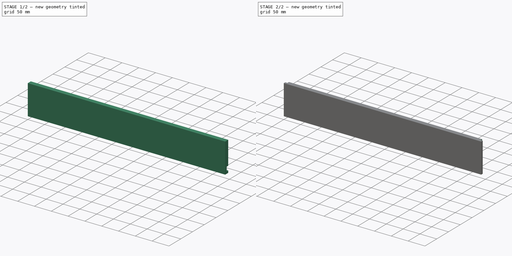
[diagram: build sequence overview — one tinted view per stage of 2, left to right]
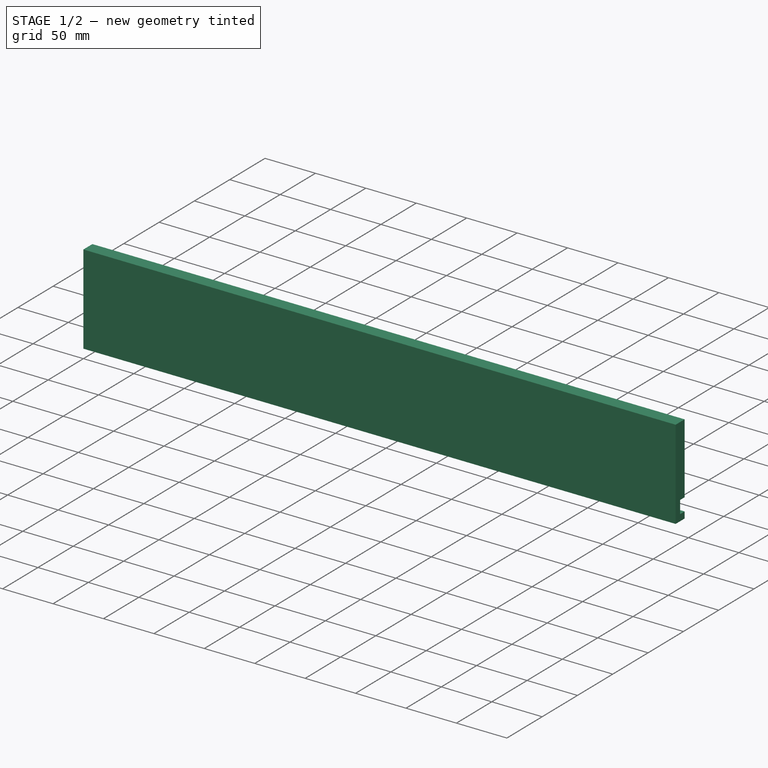
[diagram: stage 1 of 2 — iso view after this stage's code; geometry added in this stage tinted green]
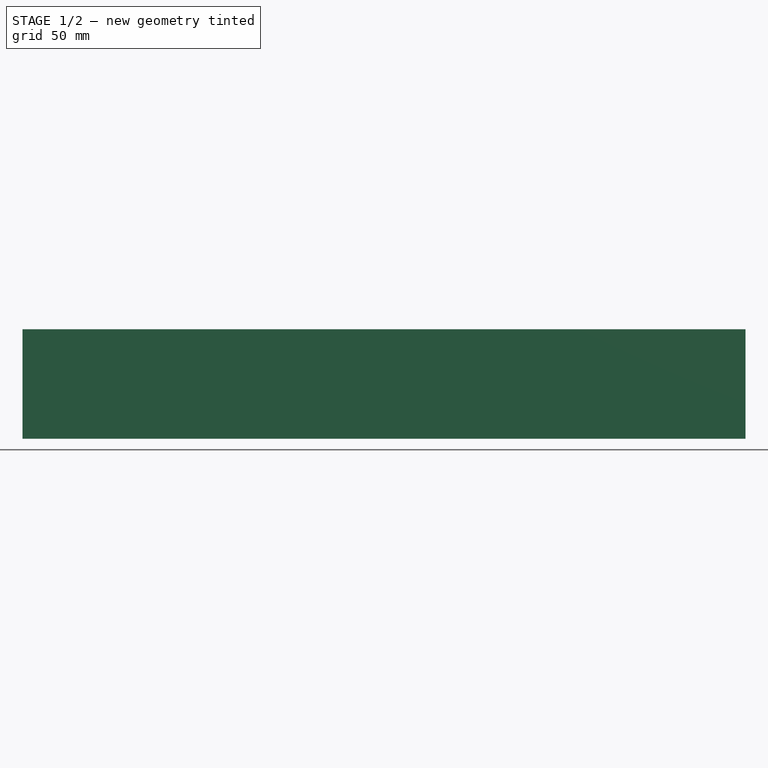
[diagram: stage 1 of 2 — front view after this stage's code; geometry added in this stage tinted green]
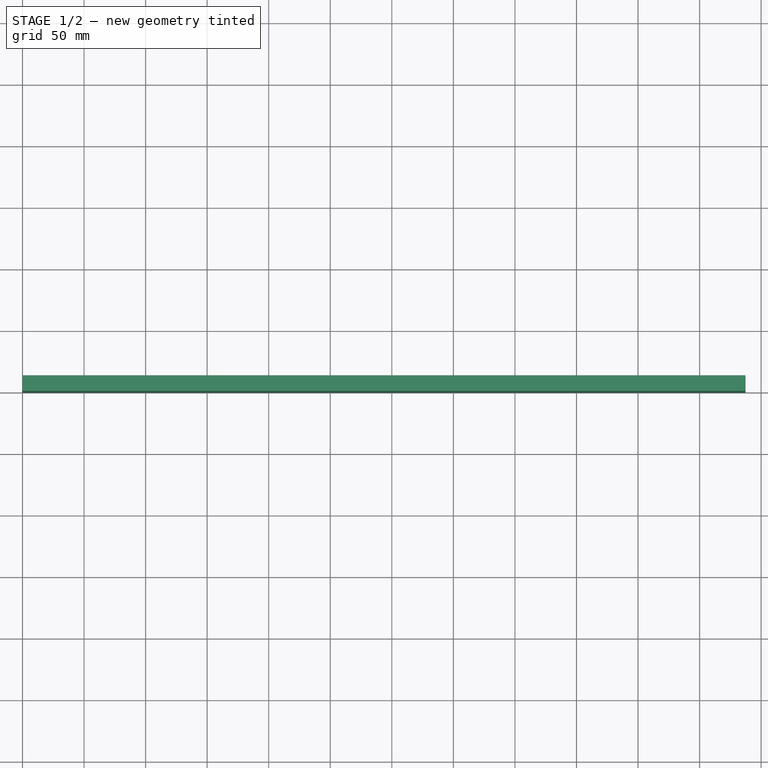
[diagram: stage 1 of 2 — top view after this stage's code; geometry added in this stage tinted green]
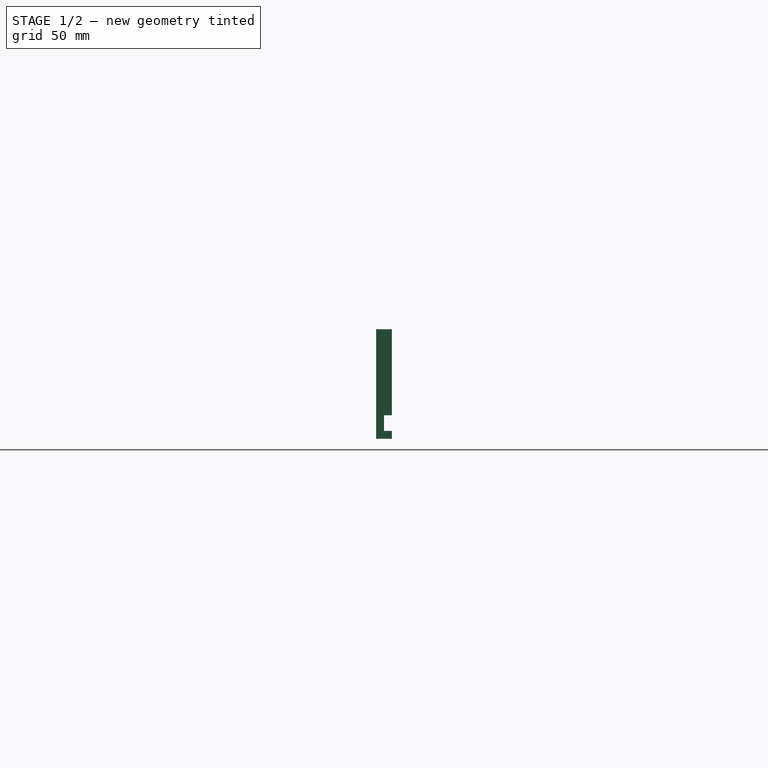
[diagram: stage 1 of 2 — right view after this stage's code; geometry added in this stage tinted green]
FCSTD DOCUMENT  (FreeCAD 0.19R24291 (Git))
Label: side
License: All rights reserved
LicenseURL: http://en.wikipedia.org/wiki/All_rights_reserved
objects: Sketcher::SketchObject×3, PartDesign::Pocket×2, PartDesign::Pad×1, PartDesign::Body×1
note: 10 computed .brp shape members not serialized (recipe doc carries the construction recipe); baked Part::Feature solids carry a one-line shape summary decoded from their .brp

FEATURE [Sketcher::SketchObject] Sketch
  FullyConstrained = true
  MapMode = 5
  Placement = pos=(0,0,0) rot=(0.57735,0.57735,0.57735;2.0944rad)
  Support = -> [YZ_Plane]
  expr: Constraints[8] = 3.5 * 25.4
  expr: Constraints[10] = 0.5 * 25.4
  sketch-geometry (4):
    g0: LineSegment StartX=0 StartY=0 StartZ=0 EndX=12.7 EndY=0 EndZ=0
    g1: LineSegment StartX=12.7 StartY=0 StartZ=0 EndX=12.7 EndY=88.9 EndZ=0
    g2: LineSegment StartX=12.7 StartY=88.9 StartZ=0 EndX=0 EndY=88.9 EndZ=0
    g3: LineSegment StartX=0 StartY=88.9 StartZ=0 EndX=0 EndY=0 EndZ=0
  constraints (11):
    c: Coincident(g0,g1)
    c: Coincident(g1,g2)
    c: Coincident(g2,g3)
    c: Coincident(g3,g0)
    c: Horizontal(g0)
    c: Horizontal(g2)
    c: Vertical(g1)
    c: Vertical(g3)
    c: DistanceY(g3,g3) = 88.9
    c: Coincident(g0,g-1)
    c: DistanceX(g0,g0) = 12.7
FEATURE [PartDesign::Pad] Pad
  Direction = (1,1,1)
  Length = 587.3
  Length2 = 100
  Placement = pos=(0,0,0) rot=(0.57735,0.57735,0.57735;2.0944rad)
  Profile = -> Sketch
  Type = 0
  expr: Length = 600 - 1 / 4 * 25.4 - 1 / 4 * 25.4
FEATURE [Sketcher::SketchObject] Sketch001
  ExternalGeometry = -> [Pad]
  FullyConstrained = true
  MapMode = 5
  Placement = pos=(587.3,-2.608e-13,1.956e-13) rot=(0.57735,0.57735,0.57735;2.0944rad)
  Support = -> [Pad]
  expr: Constraints[9] = 6.35
  expr: Constraints[10] = 0.5 * 25.4
  expr: Constraints[11] = 1 / 4 * 25.4
  sketch-geometry (4):
    g0: LineSegment StartX=12.7 StartY=19.05 StartZ=0 EndX=6.35 EndY=19.05 EndZ=0
    g1: LineSegment StartX=6.35 StartY=19.05 StartZ=0 EndX=6.35 EndY=6.35 EndZ=0
    g2: LineSegment StartX=6.35 StartY=6.35 StartZ=0 EndX=12.7 EndY=6.35 EndZ=0
    g3: LineSegment StartX=12.7 StartY=6.35 StartZ=0 EndX=12.7 EndY=19.05 EndZ=0
  constraints (12):
    c: Coincident(g0,g1)
    c: Coincident(g1,g2)
    c: Coincident(g2,g3)
    c: Coincident(g3,g0)
    c: Horizontal(g0)
    c: Horizontal(g2)
    c: Vertical(g1)
    c: Vertical(g3)
    c: PointOnObject(g0,g-4)
    c: DistanceY(g-4,g2) = 6.35
    c: DistanceY(g2,g0) = 12.7
    c: DistanceX(g1,g2) = 6.35
FEATURE [PartDesign::Pocket] Pocket
  BaseFeature = -> Pad
  Length = 5
  Length2 = 100
  Placement = pos=(0,0,0) rot=(0.57735,0.57735,0.57735;2.0944rad)
  Profile = -> Sketch001
  Type = 1
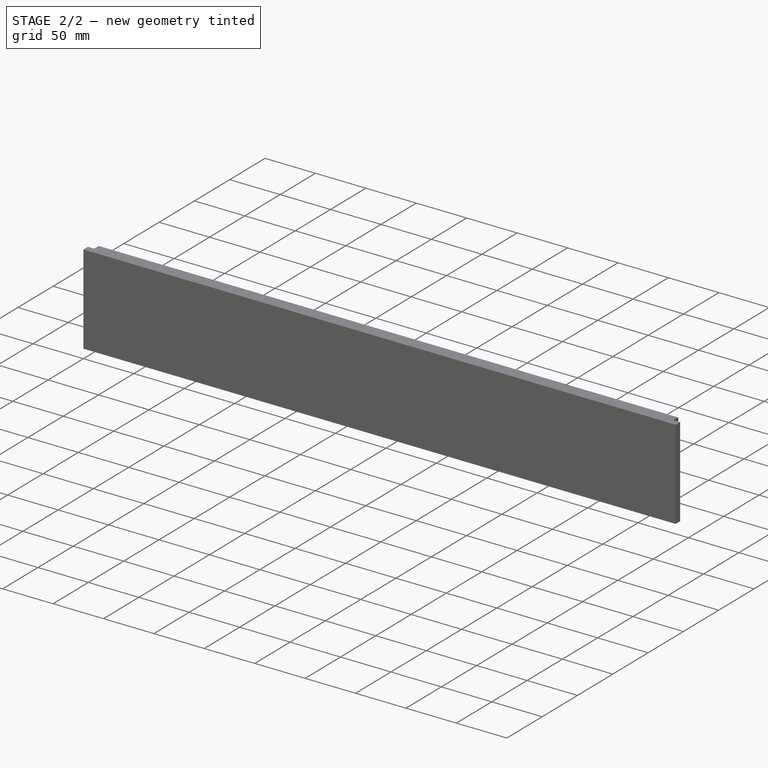
[diagram: stage 2 of 2 — iso view after this stage's code; geometry added in this stage tinted green]
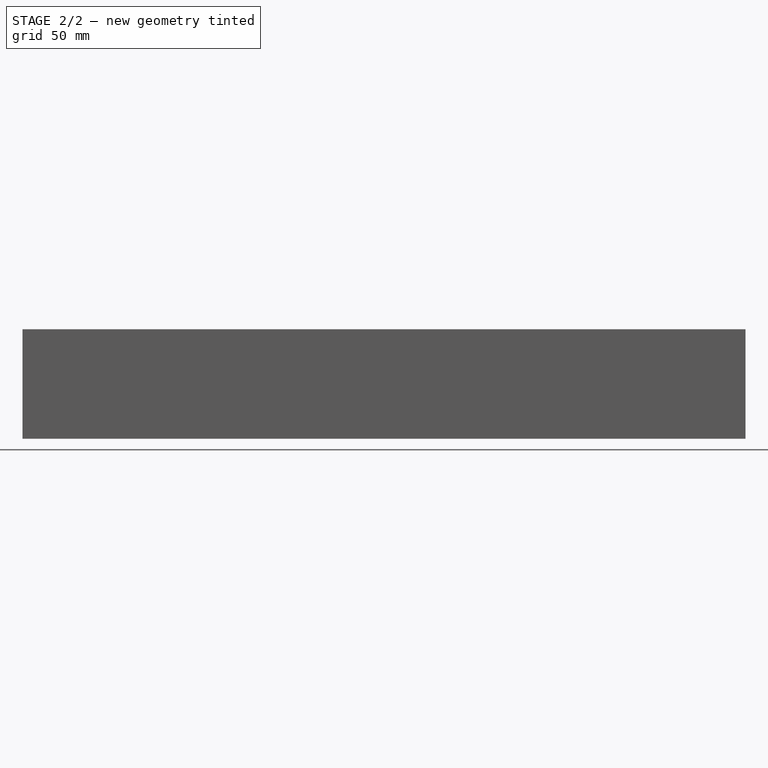
[diagram: stage 2 of 2 — front view after this stage's code; geometry added in this stage tinted green]
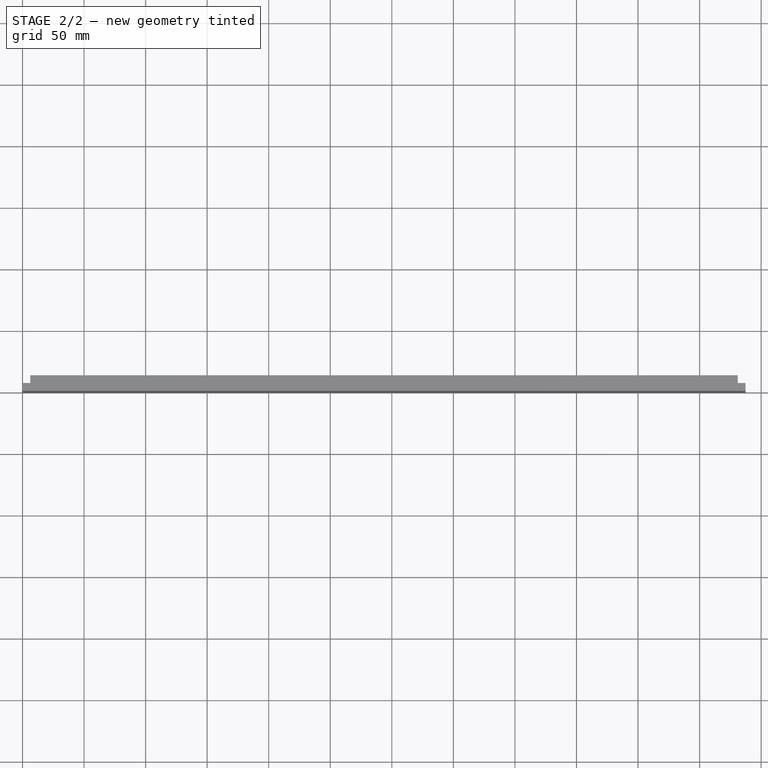
[diagram: stage 2 of 2 — top view after this stage's code; geometry added in this stage tinted green]
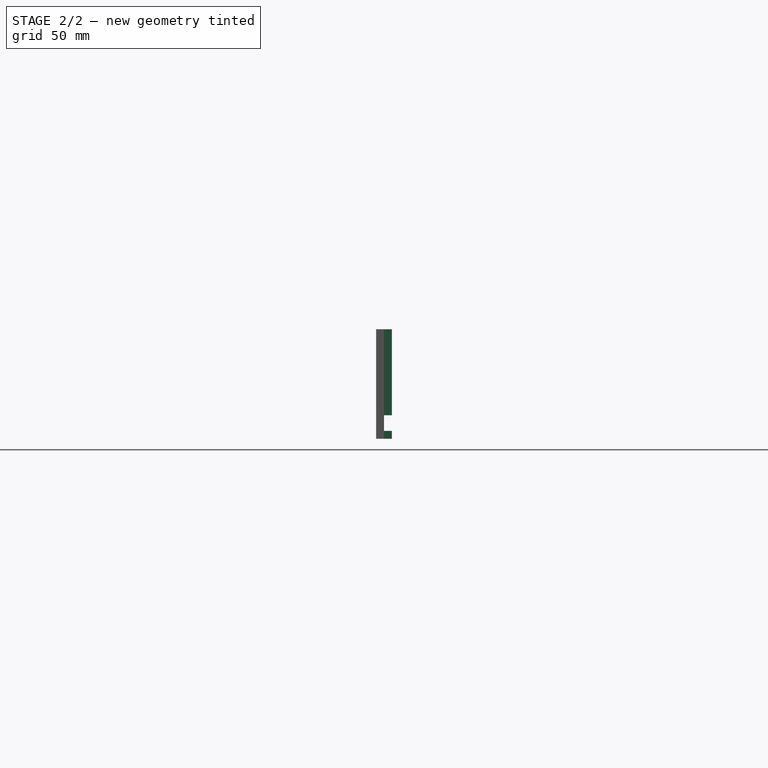
[diagram: stage 2 of 2 — right view after this stage's code; geometry added in this stage tinted green]
FEATURE [Sketcher::SketchObject] Sketch002
  ExternalGeometry = -> [Pocket]
  FullyConstrained = true
  MapMode = 5
  Placement = pos=(-6.42e-14,5.92e-14,88.9) rot=(0,0,-1;1.5708rad)
  Support = -> [Pocket]
  expr: Constraints[9] = 6.35
  expr: Constraints[10] = 6.35
  sketch-geometry (8):
    g0: LineSegment StartX=-12.7 StartY=587.3 StartZ=0 EndX=-6.35 EndY=587.3 EndZ=0
    g1: LineSegment StartX=-6.35 StartY=587.3 StartZ=0 EndX=-6.35 EndY=580.95 EndZ=0
    g2: LineSegment StartX=-6.35 StartY=580.95 StartZ=0 EndX=-12.7 EndY=580.95 EndZ=0
    g3: LineSegment StartX=-12.7 StartY=580.95 StartZ=0 EndX=-12.7 EndY=587.3 EndZ=0
    g4: LineSegment StartX=-12.7 StartY=-1.51e-14 StartZ=0 EndX=-6.35 EndY=-1.51e-14 EndZ=0
    g5: LineSegment StartX=-6.35 StartY=-1.51e-14 StartZ=0 EndX=-6.35 EndY=6.35 EndZ=0
    g6: LineSegment StartX=-6.35 StartY=6.35 StartZ=0 EndX=-12.7 EndY=6.35 EndZ=0
    g7: LineSegment StartX=-12.7 StartY=6.35 StartZ=0 EndX=-12.7 EndY=-1.51e-14 EndZ=0
  constraints (22):
    c: Coincident(g0,g1)
    c: Coincident(g1,g2)
    c: Coincident(g2,g3)
    c: Coincident(g3,g0)
    c: Horizontal(g0)
    c: Horizontal(g2)
    c: Vertical(g1)
    c: Vertical(g3)
    c: Coincident(g0,g-3)
    c: DistanceX(g0,g0) = 6.35
    c: DistanceY(g3,g3) = 6.35
    c: Coincident(g4,g5)
    c: Coincident(g5,g6)
    c: Coincident(g6,g7)
    c: Coincident(g7,g4)
    c: Horizontal(g4)
    c: Horizontal(g6)
    c: Vertical(g5)
    c: Vertical(g7)
    c: Coincident(g4,g-5)
    c: Equal(g0,g6)
    c: Equal(g6,g7)
FEATURE [PartDesign::Pocket] Pocket001
  BaseFeature = -> Pocket
  Length = 5
  Length2 = 100
  Placement = pos=(0,0,0) rot=(0.57735,0.57735,0.57735;2.0944rad)
  Profile = -> Sketch002
  Type = 1
FEATURE [PartDesign::Body] Body
  Group = -> [Sketch,Pad,Sketch001,Pocket,Sketch002,Pocket001]
  Origin = -> Origin
  Tip = -> Pocket001
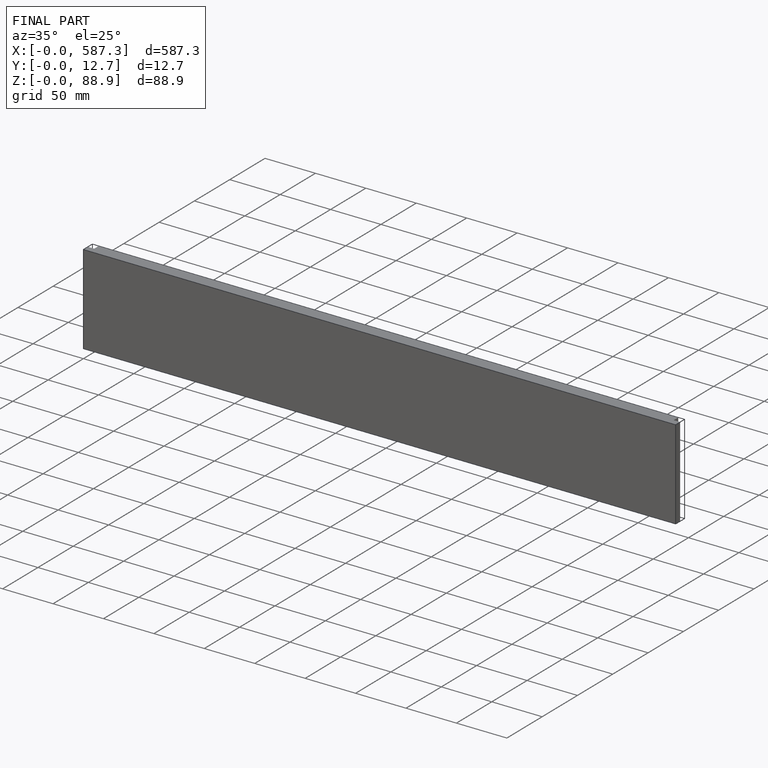
[diagram: finished part — iso view with bounding-box wireframe]
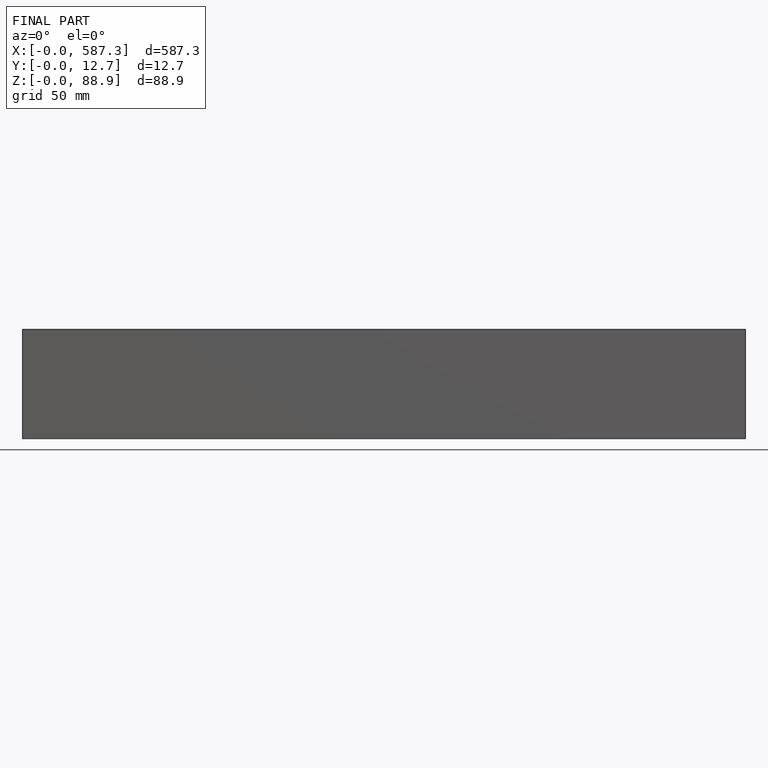
[diagram: finished part — front view with bounding-box wireframe]
